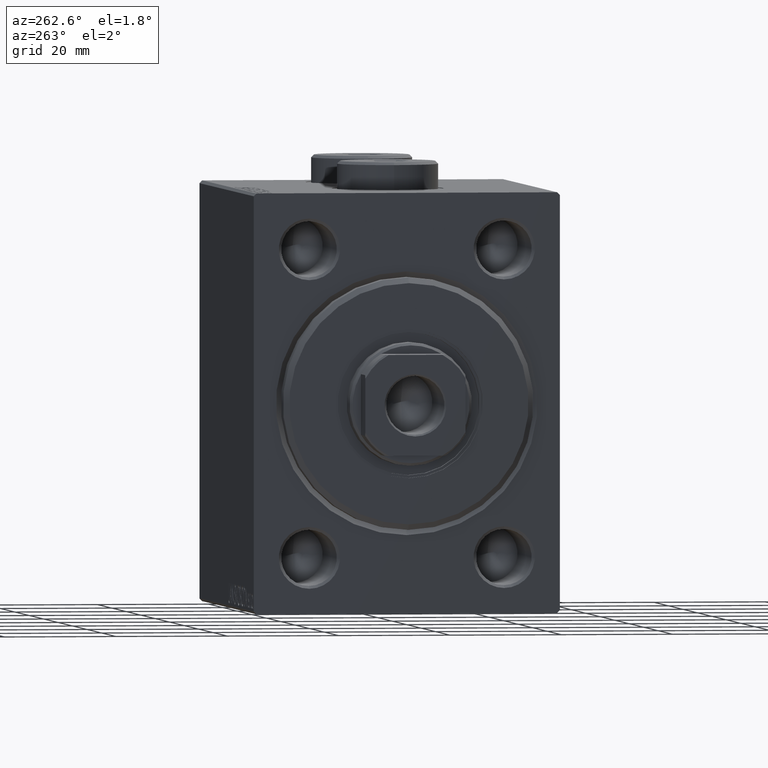
[diagram: clean part render]
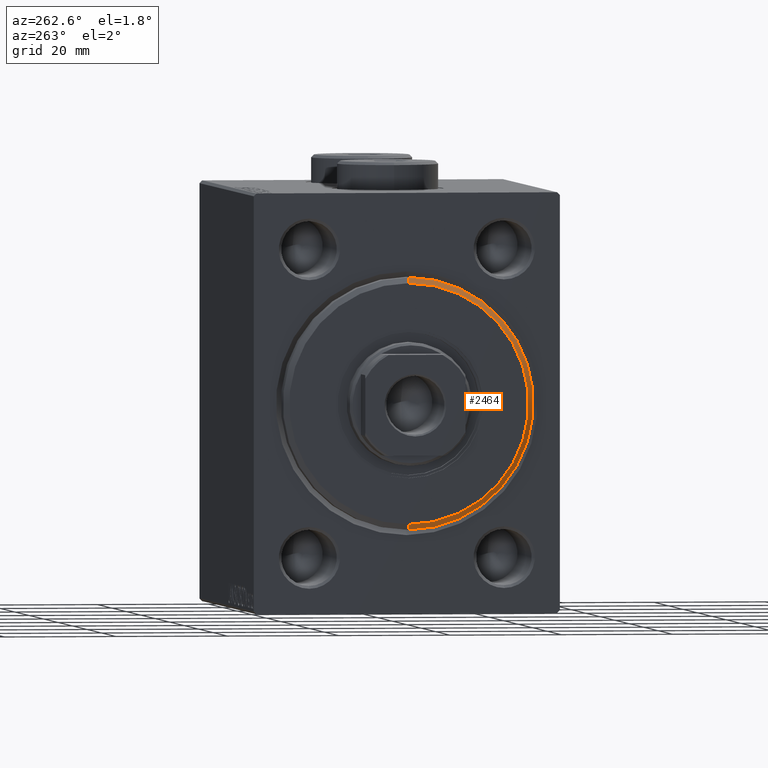
[diagram: same view with one face highlighted and labeled with its STEP entity id]
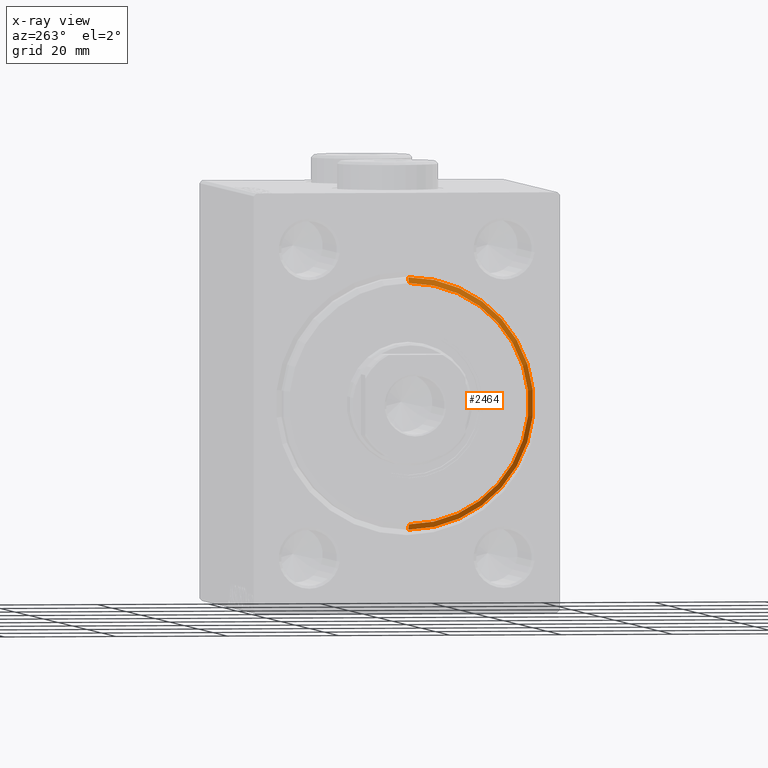
[diagram: x-ray of the same camera — body ghosted, the highlighted face saturated]
A machine part, auxiliary view. The second image highlights one B-rep face of the part: STEP entity #2464.
The next image is the same camera in x-ray: the body ghosted, the highlighted face saturated — about 0% of this face is hidden behind the body in this view.
In plain terms, the highlighted conical surface has half-angle 45 deg.
Its self-contained STEP definition (entity closure, byte-faithful):
#646 = CIRCLE ( 'NONE', #30057, 22.50000000000000355 ) ;
#929 = CARTESIAN_POINT ( 'NONE',  ( 3.000000000000000000, 0.000000000000000000, 0.000000000000000000 ) ) ;
#2464 = ADVANCED_FACE ( 'NONE', ( #21895 ), #15516, .T. ) ;
#3034 = EDGE_CURVE ( 'NONE', #39079, #3397, #16380, .T. ) ;
#3061 = CARTESIAN_POINT ( 'NONE',  ( 3.000000000000000000, 0.000000000000000000, 21.50000000000000355 ) ) ;
#3397 = VERTEX_POINT ( 'NONE', #27837 ) ;
#6235 = DIRECTION ( 'NONE',  ( -0.7071067811865487940, 8.659560562354919300E-17, -0.7071067811865463515 ) ) ;
#10211 = DIRECTION ( 'NONE',  ( -0.7071067811865487940, 0.000000000000000000, 0.7071067811865463515 ) ) ;
#11470 = ORIENTED_EDGE ( 'NONE', *, *, #13774, .F. ) ;
#12085 = DIRECTION ( 'NONE',  ( 1.000000000000000000, -0.000000000000000000, 0.000000000000000000 ) ) ;
#13658 = EDGE_CURVE ( 'NONE', #39079, #45267, #29722, .T. ) ;
#13774 = EDGE_CURVE ( 'NONE', #45267, #31678, #38539, .T. ) ;
#15516 = CONICAL_SURFACE ( 'NONE', #18448, 21.50000000000000355, 0.7853981633974466137 ) ;
#16380 = LINE ( 'NONE', #34341, #22916 ) ;
#17192 = VECTOR ( 'NONE', #10211, 1000.000000000000000 ) ;
#17393 = ORIENTED_EDGE ( 'NONE', *, *, #28807, .F. ) ;
#18448 = AXIS2_PLACEMENT_3D ( 'NONE', #929, #29267, #35735 ) ;
#21895 = FACE_OUTER_BOUND ( 'NONE', #30373, .T. ) ;
#22916 = VECTOR ( 'NONE', #6235, 1000.000000000000000 ) ;
#23356 = CARTESIAN_POINT ( 'NONE',  ( 1.999999999999999112, 0.000000000000000000, 22.50000000000000355 ) ) ;
#26917 = ORIENTED_EDGE ( 'NONE', *, *, #13658, .F. ) ;
#27837 = CARTESIAN_POINT ( 'NONE',  ( 1.999999999999999112, 2.755455298081545172E-15, -22.50000000000000355 ) ) ;
#28597 = DIRECTION ( 'NONE',  ( 0.000000000000000000, 0.000000000000000000, -1.000000000000000000 ) ) ;
#28807 = EDGE_CURVE ( 'NONE', #31678, #3397, #646, .T. ) ;
#29265 = CARTESIAN_POINT ( 'NONE',  ( 1.999999999999999112, 0.000000000000000000, 0.000000000000000000 ) ) ;
#29267 = DIRECTION ( 'NONE',  ( -1.000000000000000000, 0.000000000000000000, 0.000000000000000000 ) ) ;
#29722 = CIRCLE ( 'NONE', #33407, 21.50000000000000355 ) ;
#30057 = AXIS2_PLACEMENT_3D ( 'NONE', #29265, #42867, #28597 ) ;
#30373 = EDGE_LOOP ( 'NONE', ( #26917, #39440, #17393, #11470 ) ) ;
#31678 = VERTEX_POINT ( 'NONE', #23356 ) ;
#33407 = AXIS2_PLACEMENT_3D ( 'NONE', #36048, #12085, #39956 ) ;
#34341 = CARTESIAN_POINT ( 'NONE',  ( 3.000000000000000000, 2.632990618166810024E-15, -21.50000000000000355 ) ) ;
#35735 = DIRECTION ( 'NONE',  ( 0.000000000000000000, 0.000000000000000000, 1.000000000000000000 ) ) ;
#36048 = CARTESIAN_POINT ( 'NONE',  ( 3.000000000000000000, 0.000000000000000000, 0.000000000000000000 ) ) ;
#37210 = CARTESIAN_POINT ( 'NONE',  ( 3.000000000000000000, 2.694222958124177598E-15, -21.50000000000000355 ) ) ;
#38539 = LINE ( 'NONE', #3061, #17192 ) ;
#39079 = VERTEX_POINT ( 'NONE', #37210 ) ;
#39440 = ORIENTED_EDGE ( 'NONE', *, *, #3034, .T. ) ;
#39956 = DIRECTION ( 'NONE',  ( 0.000000000000000000, 0.000000000000000000, -1.000000000000000000 ) ) ;
#40820 = CARTESIAN_POINT ( 'NONE',  ( 3.000000000000000000, 0.000000000000000000, 21.50000000000000355 ) ) ;
#42867 = DIRECTION ( 'NONE',  ( -1.000000000000000000, 0.000000000000000000, 0.000000000000000000 ) ) ;
#45267 = VERTEX_POINT ( 'NONE', #40820 ) ;